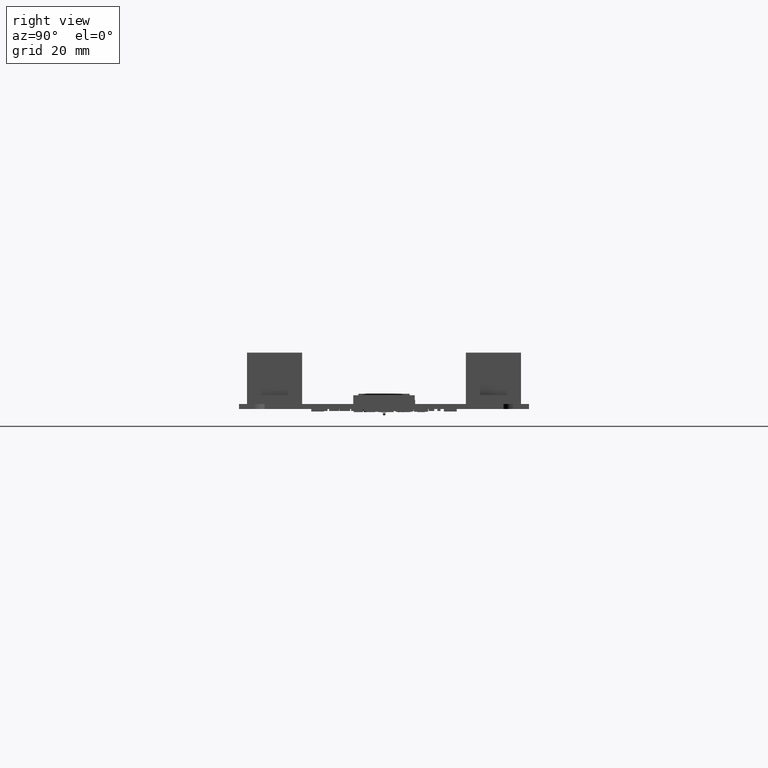
[diagram: clean part render]
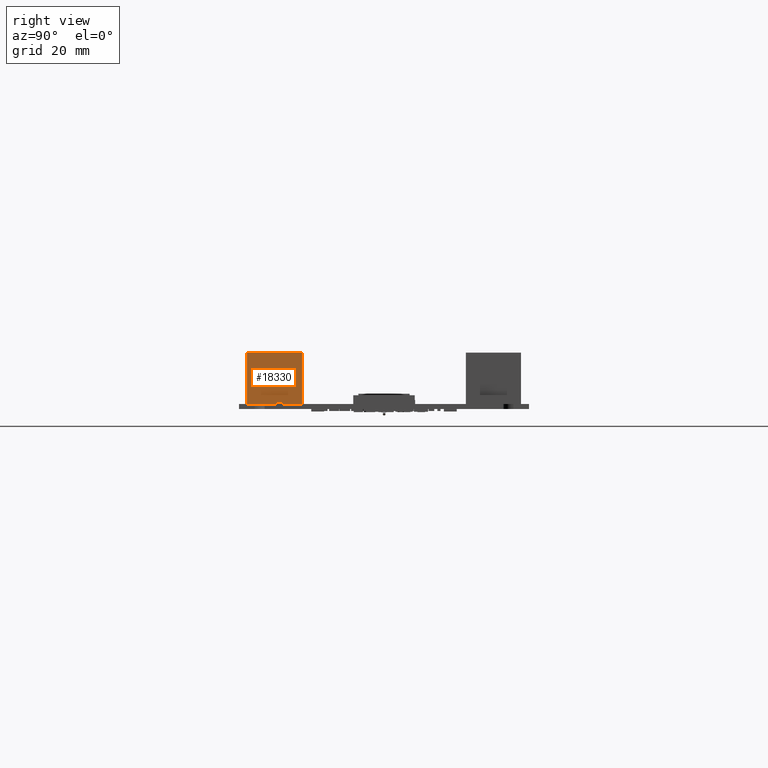
[diagram: same view with one face highlighted and labeled with its STEP entity id]
A machine part, right view. The second image highlights one B-rep face of the part: STEP entity #18330.
In plain terms, the highlighted planar face has unit normal (1, 0, 0).
Its self-contained STEP definition (entity closure, byte-faithful):
#18305 = VERTEX_POINT('',#18306);
#18306 = CARTESIAN_POINT('',(12.699492,5.36949142,10.00000032));
#18312 = EDGE_CURVE('',#18313,#18305,#18315,.T.);
#18313 = VERTEX_POINT('',#18314);
#18314 = CARTESIAN_POINT('',(12.699492,5.36949142,0.E+000));
#18315 = LINE('',#18316,#18317);
#18316 = CARTESIAN_POINT('',(12.699492,5.36949142,0.E+000));
#18317 = VECTOR('',#18318,1.);
#18318 = DIRECTION('',(0.E+000,0.E+000,1.));
#18330 = ADVANCED_FACE('',(#18331),#18356,.T.);
#18331 = FACE_BOUND('',#18332,.T.);
#18332 = EDGE_LOOP('',(#18333,#18334,#18342,#18350));
#18333 = ORIENTED_EDGE('',*,*,#18312,.T.);
#18334 = ORIENTED_EDGE('',*,*,#18335,.T.);
#18335 = EDGE_CURVE('',#18305,#18336,#18338,.T.);
#18336 = VERTEX_POINT('',#18337);
#18337 = CARTESIAN_POINT('',(12.699492,-5.36949142,10.00000032));
#18338 = LINE('',#18339,#18340);
#18339 = CARTESIAN_POINT('',(12.699492,5.36949142,10.00000032));
#18340 = VECTOR('',#18341,1.);
#18341 = DIRECTION('',(0.E+000,-1.,0.E+000));
#18342 = ORIENTED_EDGE('',*,*,#18343,.F.);
#18343 = EDGE_CURVE('',#18344,#18336,#18346,.T.);
#18344 = VERTEX_POINT('',#18345);
#18345 = CARTESIAN_POINT('',(12.699492,-5.36949142,0.E+000));
#18346 = LINE('',#18347,#18348);
#18347 = CARTESIAN_POINT('',(12.699492,-5.36949142,0.E+000));
#18348 = VECTOR('',#18349,1.);
#18349 = DIRECTION('',(0.E+000,0.E+000,1.));
#18350 = ORIENTED_EDGE('',*,*,#18351,.F.);
#18351 = EDGE_CURVE('',#18313,#18344,#18352,.T.);
#18352 = LINE('',#18353,#18354);
#18353 = CARTESIAN_POINT('',(12.699492,5.36949142,0.E+000));
#18354 = VECTOR('',#18355,1.);
#18355 = DIRECTION('',(0.E+000,-1.,0.E+000));
#18356 = PLANE('',#18357);
#18357 = AXIS2_PLACEMENT_3D('',#18358,#18359,#18360);
#18358 = CARTESIAN_POINT('',(12.699492,5.36949142,0.E+000));
#18359 = DIRECTION('',(1.,0.E+000,-0.E+000));
#18360 = DIRECTION('',(0.E+000,-1.,0.E+000));